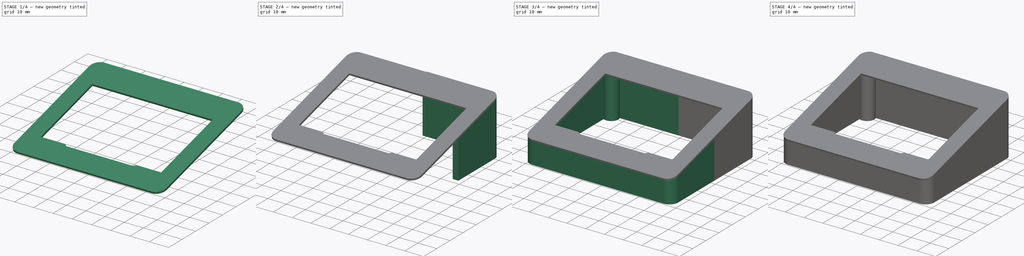
[diagram: build sequence overview — one tinted view per stage of 4, left to right]
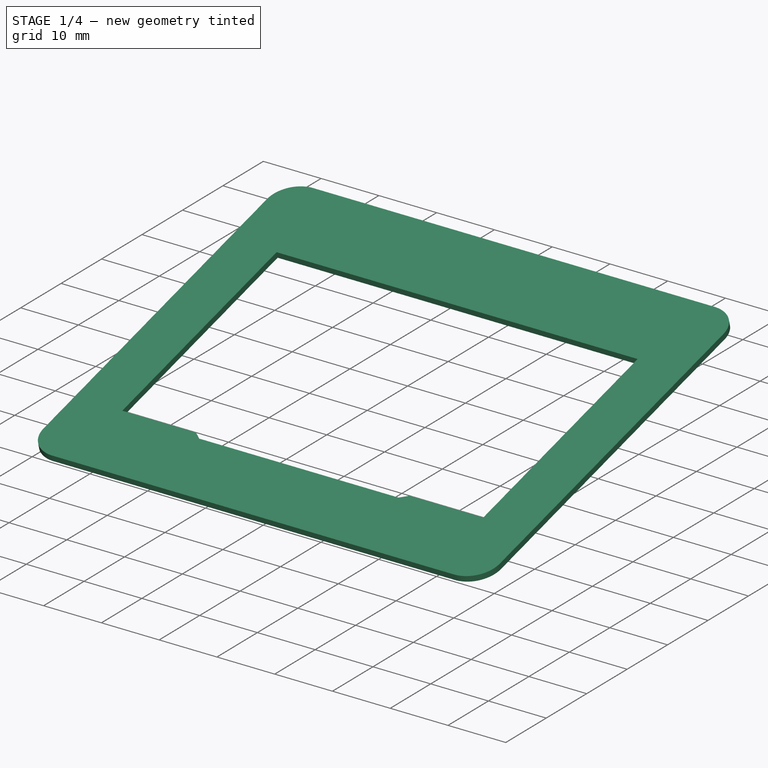
[diagram: stage 1 of 4 — iso view after this stage's code; geometry added in this stage tinted green]
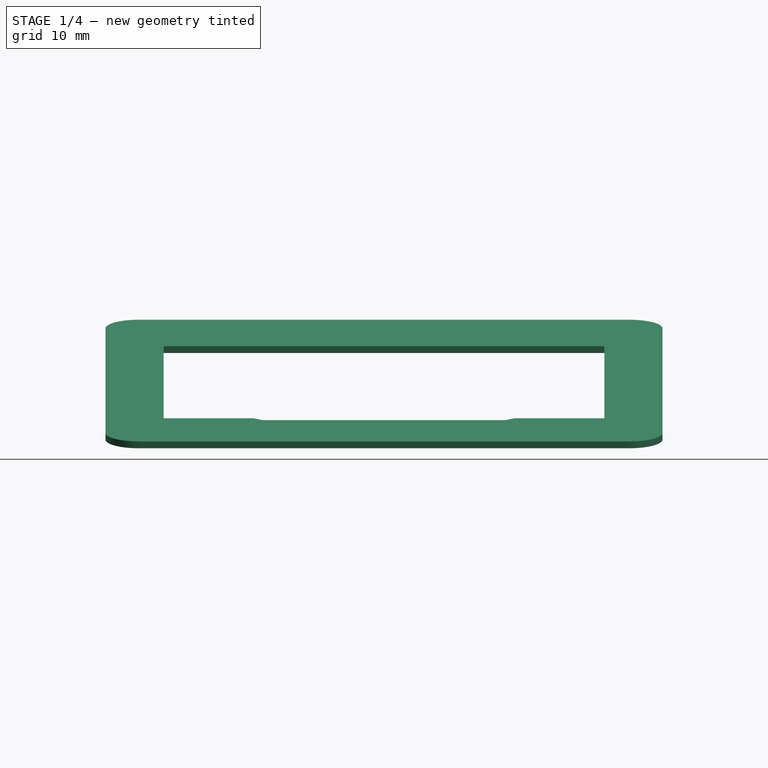
[diagram: stage 1 of 4 — front view after this stage's code; geometry added in this stage tinted green]
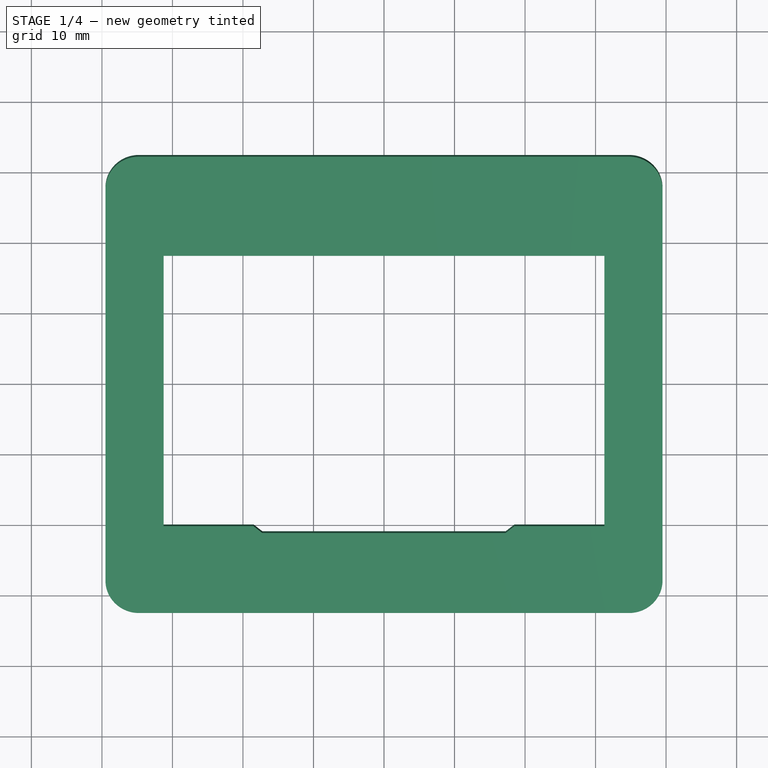
[diagram: stage 1 of 4 — top view after this stage's code; geometry added in this stage tinted green]
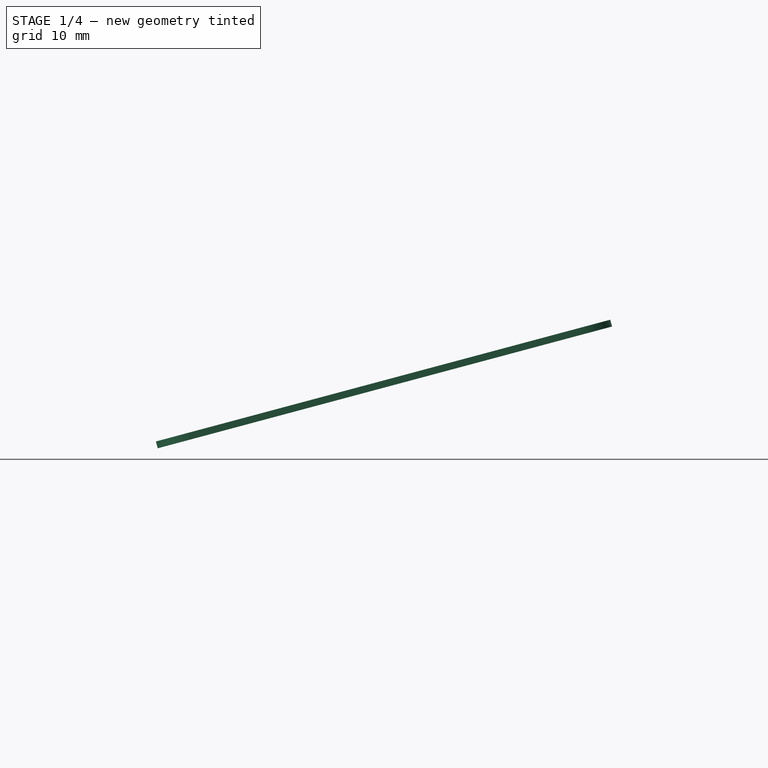
[diagram: stage 1 of 4 — right view after this stage's code; geometry added in this stage tinted green]
FCSTD DOCUMENT  (FreeCAD 0.20R29177 (Git))
Label: Display
License: All rights reserved
LicenseURL: http://en.wikipedia.org/wiki/All_rights_reserved
objects: Sketcher::SketchObject×8, PartDesign::Pad×4, PartDesign::Mirrored×4, PartDesign::Pocket×2, PartDesign::Body×2, PartDesign::Point×1, PartDesign::MultiTransform×1, Spreadsheet::Sheet×1
note: 28 computed .brp shape members not serialized (recipe doc carries the construction recipe); baked Part::Feature solids carry a one-line shape summary decoded from their .brp

FEATURE [Sketcher::SketchObject] Sketch
  FullyConstrained = true
  Placement = pos=(0,0,20) rot=(1,0,0;0.261799rad)
  sketch-geometry (19):
    g0: LineSegment StartX=0 StartY=18.85 StartZ=0 EndX=31.25 EndY=18.85 EndZ=0
    g1: LineSegment StartX=31.25 StartY=18.85 StartZ=0 EndX=31.25 EndY=-20.65 EndZ=0
    g2: LineSegment StartX=31.25 StartY=-20.65 StartZ=0 EndX=18.5 EndY=-20.65 EndZ=0
    g3: LineSegment StartX=18.5 StartY=-20.65 StartZ=0 EndX=17.25 EndY=-21.65 EndZ=0
    g4: LineSegment StartX=17.25 StartY=-21.65 StartZ=0 EndX=0 EndY=-21.65 EndZ=0
    g5: LineSegment StartX=0 StartY=-21.65 StartZ=0 EndX=0 EndY=-33.35 EndZ=0
    g6: LineSegment StartX=0 StartY=-33.35 StartZ=0 EndX=34.75 EndY=-33.35 EndZ=0
    g7: LineSegment StartX=39.5 StartY=-28.6 StartZ=0 EndX=39.5 EndY=28.6 EndZ=0
    g8: LineSegment StartX=34.75 StartY=33.35 StartZ=0 EndX=0 EndY=33.35 EndZ=0
    g9: LineSegment StartX=0 StartY=33.35 StartZ=0 EndX=0 EndY=18.85 EndZ=0
    g10: LineSegment StartX=0 StartY=21.85 StartZ=0 EndX=35.5 EndY=21.85 EndZ=0
    g11: LineSegment StartX=35.5 StartY=21.85 StartZ=0 EndX=35.5 EndY=-21.85 EndZ=0
    g12: LineSegment StartX=35.5 StartY=-21.85 StartZ=0 EndX=0 EndY=-21.85 EndZ=0
    g13: Circle CenterX=34.75 CenterY=28.6 CenterZ=0 NormalX=0 NormalY=0 NormalZ=1 AngleXU=0 Radius=1.75
    g14: Circle CenterX=34.75 CenterY=-28.6 CenterZ=0 NormalX=0 NormalY=0 NormalZ=1 AngleXU=0 Radius=1.75
    g15: ArcOfCircle CenterX=34.75 CenterY=28.6 CenterZ=0 NormalX=0 NormalY=0 NormalZ=1 AngleXU=0 Radius=4.75 StartAngle=0 EndAngle=1.5708
    g16: GeomPoint X=39.5 Y=33.35 Z=0
    g17: ArcOfCircle CenterX=34.75 CenterY=-28.6 CenterZ=0 NormalX=0 NormalY=0 NormalZ=1 AngleXU=0 Radius=4.75 StartAngle=4.71239 EndAngle=6.28319
    g18: GeomPoint X=39.5 Y=-33.35 Z=0
  constraints (52):
    c: PointOnObject(g0,g-2)
    c: Horizontal(g0)
    c: Coincident(g0,g1)
    c: Vertical(g1)
    c: Coincident(g1,g2)
    c: Horizontal(g2)
    c: Coincident(g2,g3)
    c: Coincident(g3,g4)
    c: PointOnObject(g4,g-2)
    c: Horizontal(g4)
    c: Coincident(g4,g5)
    c: PointOnObject(g5,g-2)
    c: Coincident(g5,g6)
    c: Horizontal(g6)
    c: Vertical(g7)
    c: PointOnObject(g8,g-2)
    c: Horizontal(g8)
    c: Coincident(g8,g9)
    c: Coincident(g9,g0)
    c: Distance(g-1,g1) = 31.25
    c: Distance(g1) = 39.5
    c: DistanceY(g4,g0) = 40.5
    c: Distance(g4) = 17.25
    c: Distance(g2,g-2) = 18.5
    c: Coincident(g10,g11)
    c: Coincident(g11,g12)
    c: Horizontal(g10)
    c: Horizontal(g12)
    c: Vertical(g11)
    c: PointOnObject(g10,g-2)
    c: Distance(g-1,g11) = 35.5
    c: Distance(g11) = 43.7
    c: DistanceY(g0,g10) = 3
    c: Diameter(g13) = 3.5
    c: Symmetric(g12,g10,g-1)
    c: Symmetric(g13,g14,g-1)
    c: Equal(g14,g13)
    c: Distance(g13,g10) = 6.75
    c: Distance(g10,g7) = 4
    c: PointOnObject(g16,g8)
    c: PointOnObject(g16,g7)
    c: Tangent(g8,g15) = -1.5708
    c: Tangent(g7,g15) = -1.5708
    c: PointOnObject(g18,g6)
    c: PointOnObject(g18,g7)
    c: Tangent(g6,g17) = -1.5708
    c: Tangent(g7,g17) = -1.5708
    c: Coincident(g15,g13)
    c: Coincident(g17,g14)
    c: DistanceX(g15) = 34.75  'Hole_X'
    c: DistanceY(g15) = 28.6  'Hole_Y'
    c: Diameter(g15) = 9.5
FEATURE [PartDesign::Pad] Pad
  Direction = (0,-0.258819,0.965926)
  Length = 1
  Length2 = 10
  Placement = pos=(0,0,20) rot=(1,0,0;0.261799rad)
  Profile = -> Sketch
  ReferenceAxis = -> Sketch [N_Axis]
  Type = 0
FEATURE [PartDesign::Mirrored] Mirrored
  BaseFeature = -> Pad
  MirrorPlane = -> Sketch [V_Axis]
  Originals = -> [Pad]
  Placement = pos=(0,0,20) rot=(1,0,0;0.261799rad)
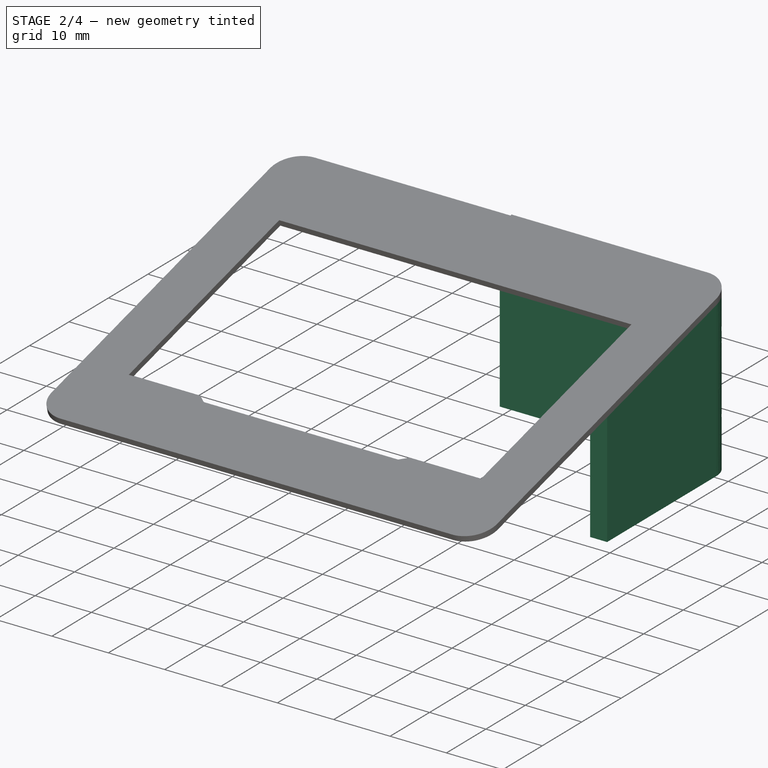
[diagram: stage 2 of 4 — iso view after this stage's code; geometry added in this stage tinted green]
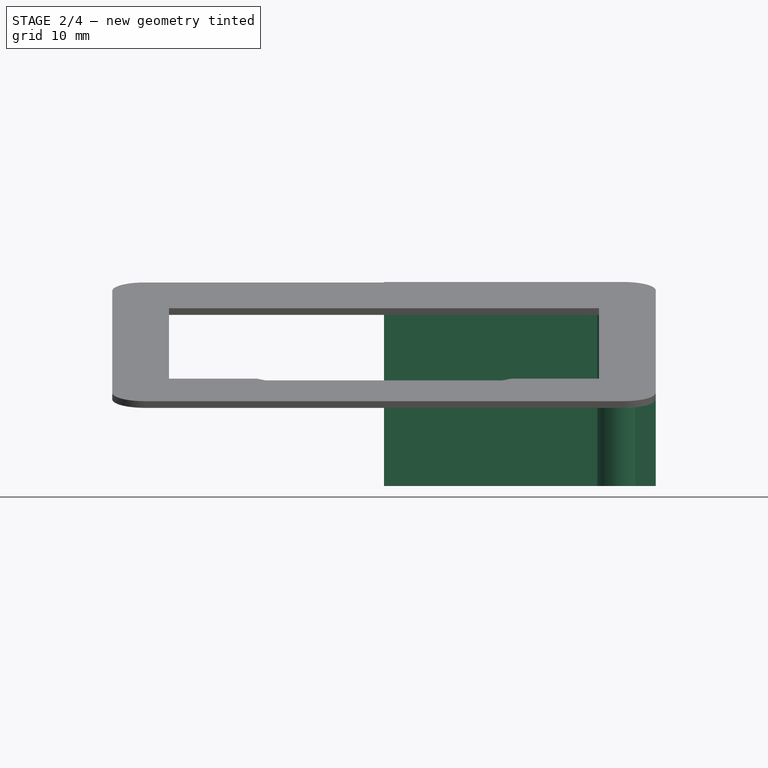
[diagram: stage 2 of 4 — front view after this stage's code; geometry added in this stage tinted green]
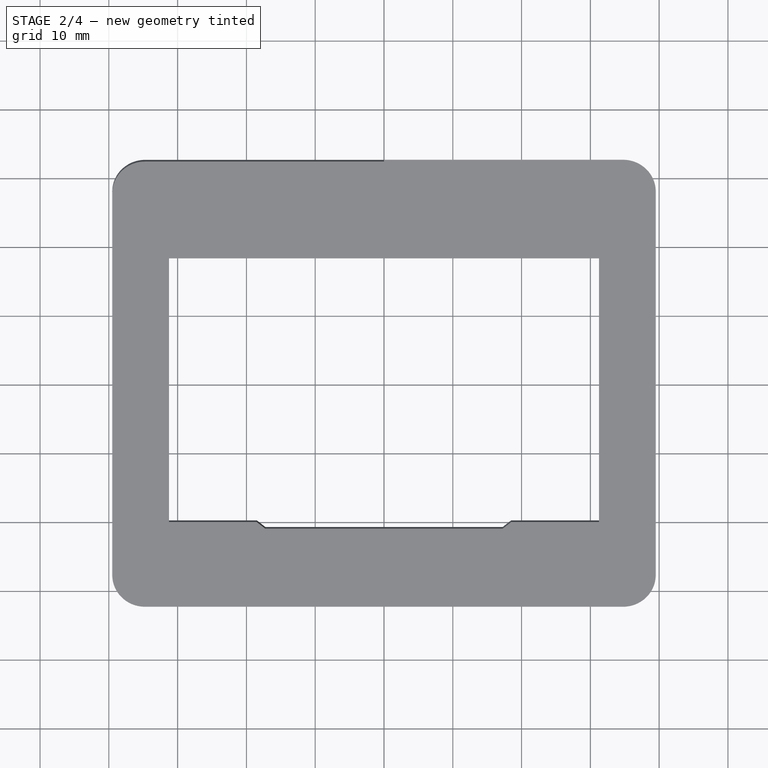
[diagram: stage 2 of 4 — top view after this stage's code; geometry added in this stage tinted green]
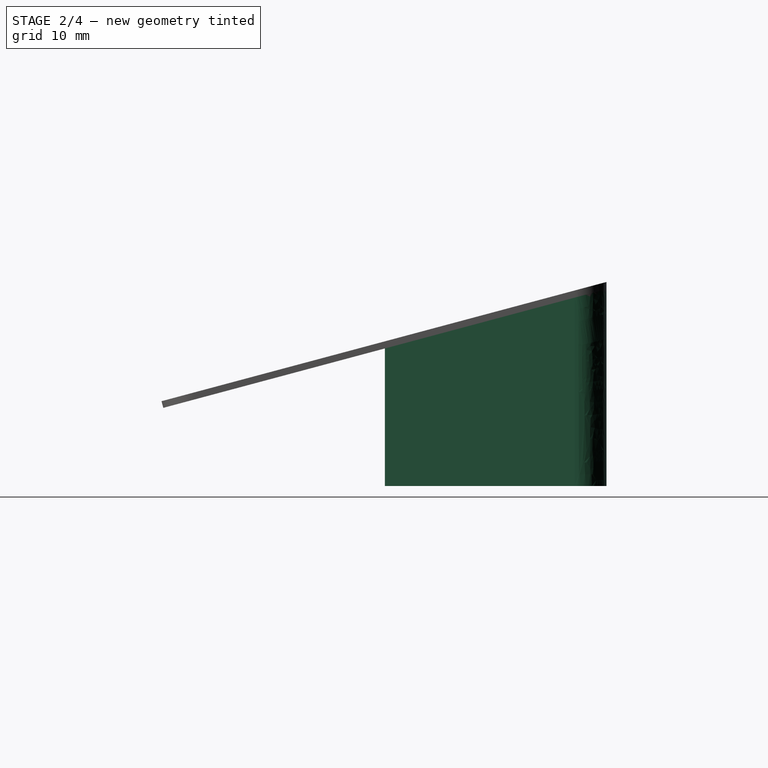
[diagram: stage 2 of 4 — right view after this stage's code; geometry added in this stage tinted green]
FEATURE [Sketcher::SketchObject] Sketch001
  FullyConstrained = true
  MapMode = 5
  Support = -> [XY_Plane]
  expr: Constraints[19] = Sketch.Constraints[19]
  expr: Constraints[20] = Sketch.Constraints[20]
  expr: Constraints[21] = Sketch.Constraints[21]
  expr: Constraints[22] = Sketch.Constraints[22]
  expr: Constraints[23] = Sketch.Constraints[23]
  expr: Constraints[30] = Sketch.Constraints[30]
  expr: Constraints[31] = Sketch.Constraints[31]
  expr: Constraints[32] = Sketch.Constraints[32]
  expr: Constraints[33] = Sketch.Constraints[33]
  expr: Constraints[37] = Sketch.Constraints[37]
  expr: Constraints[38] = Sketch.Constraints[38]
  expr: Constraints[51] = Sketch.Constraints[51]
  expr: Constraints[55] = Sketch.Constraints.Hole_X
  expr: Constraints[56] = Sketch.Constraints.Hole_Y * cos(Sketch.Placement.Rotation.Angle)
  sketch-geometry (21):
    g0: LineSegment StartX=0 StartY=18.85 StartZ=0 EndX=31.25 EndY=18.85 EndZ=0
    g1: LineSegment StartX=31.25 StartY=18.85 StartZ=0 EndX=31.25 EndY=-20.65 EndZ=0
    g2: LineSegment StartX=31.25 StartY=-20.65 StartZ=0 EndX=18.5 EndY=-20.65 EndZ=0
    g3: LineSegment StartX=18.5 StartY=-20.65 StartZ=0 EndX=17.25 EndY=-21.65 EndZ=0
    g4: LineSegment StartX=17.25 StartY=-21.65 StartZ=0 EndX=0 EndY=-21.65 EndZ=0
    g5: LineSegment StartX=0 StartY=-21.65 StartZ=0 EndX=0 EndY=-33.35 EndZ=0
    g6: LineSegment StartX=0 StartY=-33.35 StartZ=0 EndX=34.75 EndY=-33.35 EndZ=0
    g7: LineSegment StartX=39.5 StartY=-28.6 StartZ=0 EndX=39.5 EndY=28.6 EndZ=0
    g8: LineSegment StartX=34.75 StartY=33.35 StartZ=0 EndX=0 EndY=33.35 EndZ=0
    g9: LineSegment StartX=0 StartY=33.35 StartZ=0 EndX=0 EndY=18.85 EndZ=0
    g10: LineSegment StartX=0 StartY=21.85 StartZ=0 EndX=35.5 EndY=21.85 EndZ=0
    g11: LineSegment StartX=35.5 StartY=21.85 StartZ=0 EndX=35.5 EndY=-21.85 EndZ=0
    g12: LineSegment StartX=35.5 StartY=-21.85 StartZ=0 EndX=0 EndY=-21.85 EndZ=0
    g13: Circle CenterX=34.75 CenterY=28.6 CenterZ=0 NormalX=0 NormalY=0 NormalZ=1 AngleXU=0 Radius=1.75
    g14: Circle CenterX=34.75 CenterY=-28.6 CenterZ=0 NormalX=0 NormalY=0 NormalZ=1 AngleXU=0 Radius=1.75
    g15: ArcOfCircle CenterX=34.75 CenterY=28.6 CenterZ=0 NormalX=0 NormalY=0 NormalZ=1 AngleXU=0 Radius=4.75 StartAngle=0 EndAngle=1.5708
    g16: GeomPoint X=39.5 Y=33.35 Z=0
    g17: ArcOfCircle CenterX=34.75 CenterY=-28.6 CenterZ=0 NormalX=0 NormalY=0 NormalZ=1 AngleXU=0 Radius=4.75 StartAngle=4.71239 EndAngle=6.28319
    g18: GeomPoint X=39.5 Y=-33.35 Z=0
    g19: Circle CenterX=34.75 CenterY=27.6255 CenterZ=0 NormalX=0 NormalY=0 NormalZ=1 AngleXU=0 Radius=1.75
    g20: Circle CenterX=34.75 CenterY=27.6255 CenterZ=0 NormalX=0 NormalY=0 NormalZ=1 AngleXU=0 Radius=3.75
  constraints (57):
    c: PointOnObject(g0,g-2)
    c: Horizontal(g0)
    c: Coincident(g0,g1)
    c: Vertical(g1)
    c: Coincident(g1,g2)
    c: Horizontal(g2)
    c: Coincident(g2,g3)
    c: Coincident(g3,g4)
    c: PointOnObject(g4,g-2)
    c: Horizontal(g4)
    c: Coincident(g4,g5)
    c: PointOnObject(g5,g-2)
    c: Coincident(g5,g6)
    c: Horizontal(g6)
    c: Vertical(g7)
    c: PointOnObject(g8,g-2)
    c: Horizontal(g8)
    c: Coincident(g8,g9)
    c: Coincident(g9,g0)
    c: Distance(g-1,g1) = 31.25
    c: Distance(g1) = 39.5
    c: DistanceY(g4,g0) = 40.5
    c: Distance(g4) = 17.25
    c: Distance(g2,g-2) = 18.5
    c: Coincident(g10,g11)
    c: Coincident(g11,g12)
    c: Horizontal(g10)
    c: Horizontal(g12)
    c: Vertical(g11)
    c: PointOnObject(g10,g-2)
    c: Distance(g-1,g11) = 35.5
    c: Distance(g11) = 43.7
    c: DistanceY(g0,g10) = 3
    c: Diameter(g13) = 3.5
    c: Symmetric(g12,g10,g-1)
    c: Symmetric(g13,g14,g-1)
    c: Equal(g14,g13)
    c: Distance(g13,g10) = 6.75
    c: Distance(g10,g7) = 4
    c: PointOnObject(g16,g8)
    c: PointOnObject(g16,g7)
    c: Tangent(g8,g15) = -1.5708
    c: Tangent(g7,g15) = -1.5708
    c: PointOnObject(g18,g6)
    c: PointOnObject(g18,g7)
    c: Tangent(g6,g17) = -1.5708
    c: Tangent(g7,g17) = -1.5708
    c: Coincident(g15,g13)
    c: Coincident(g17,g14)
    c: DistanceX(g15) = 34.75  'Hole_X'
    c: DistanceY(g15) = 28.6  'Hole_Y'
    c: Diameter(g15) = 9.5
    c: Coincident(g20,g19)
    c: Diameter(g19) = 3.5
    c: Diameter(g20) = 7.5
    c: DistanceX(g19) = 34.75
    c: DistanceY(g19) = 27.6255
FEATURE [PartDesign::Pad] Pad001
  BaseFeature = -> Mirrored
  Direction = (0,0,1)
  Length = 10
  Length2 = 10
  Placement = pos=(0,0,20) rot=(1,0,0;0.261799rad)
  Profile = -> Sketch001
  ReferenceAxis = -> Sketch001 [N_Axis]
  Type = 2
FEATURE [Sketcher::SketchObject] Sketch002
  ExternalGeometry = -> [Pad001]
  FullyConstrained = true
  MapMode = 5
  Support = -> [XY_Plane]
  sketch-geometry (12):
    g0: LineSegment StartX=34.75 StartY=32.2136 StartZ=0 EndX=0 EndY=32.2136 EndZ=0
    g1: LineSegment StartX=39.5 StartY=27.6255 StartZ=0 EndX=39.5 EndY=0 EndZ=0
    g2: ArcOfEllipse CenterX=34.75 CenterY=27.6255 CenterZ=0 NormalX=0 NormalY=0 NormalZ=1 MajorRadius=4.75 MinorRadius=4.58815 AngleXU=0 StartAngle=2e-16 EndAngle=1.5708
    g3: LineSegment StartX=39.5 StartY=27.6255 StartZ=0 EndX=30 EndY=27.6255 EndZ=0
    g4: LineSegment StartX=34.75 StartY=32.2136 StartZ=0 EndX=34.75 EndY=23.0373 EndZ=0
    g5: GeomPoint X=35.9794 Y=27.6255 Z=0
    g6: GeomPoint X=33.5206 Y=27.6255 Z=0
    g7: LineSegment StartX=0 StartY=32.2136 StartZ=0 EndX=0 EndY=29.2136 EndZ=0
    g8: ArcOfCircle CenterX=34.75 CenterY=27.4636 CenterZ=0 NormalX=0 NormalY=0 NormalZ=1 AngleXU=0 Radius=1.75 StartAngle=1.16e-13 EndAngle=1.5708
    g9: LineSegment StartX=36.5 StartY=27.4636 StartZ=0 EndX=36.5 EndY=0 EndZ=0
    g10: LineSegment StartX=36.5 StartY=0 StartZ=0 EndX=39.5 EndY=0 EndZ=0
    g11: LineSegment StartX=0 StartY=29.2136 StartZ=0 EndX=34.75 EndY=29.2136 EndZ=0
  constraints (24):
    c: PointOnObject(g0,g-2)
    c: PointOnObject(g1,g-1)
    c: Vertical(g1)
    c: Tangent(g1,g-3) = 1.5708
    c: Tangent(g0,g-3) = -1.5708
    c: Horizontal(g0)
    c: InternalAlignment(g3-g6 -> g2) x4
    c: Coincident(g2,g1)
    c: Coincident(g2,g0)
    c: Coincident(g-3,g2)
    c: Horizontal(g3)
    c: Coincident(g7,g0)
    c: Vertical(g7)
    c: PointOnObject(g9,g-1)
    c: Vertical(g9)
    c: Coincident(g10,g9)
    c: Coincident(g10,g1)
    c: Coincident(g11,g7)
    c: Horizontal(g11)
    c: Tangent(g9,g8) = 1.5708
    c: Distance(g7) = 3
    c: Distance(g10) = 3
    c: Tangent(g8,g11) = 1.5708
    c: Diameter(g8) = 3.5
FEATURE [PartDesign::Pad] Pad002
  BaseFeature = -> Pad001
  Direction = (0,0,1)
  Length = 10
  Length2 = 10
  Placement = pos=(0,0,20) rot=(1,0,0;0.261799rad)
  Profile = -> Sketch002
  ReferenceAxis = -> Sketch002 [N_Axis]
  Type = 1
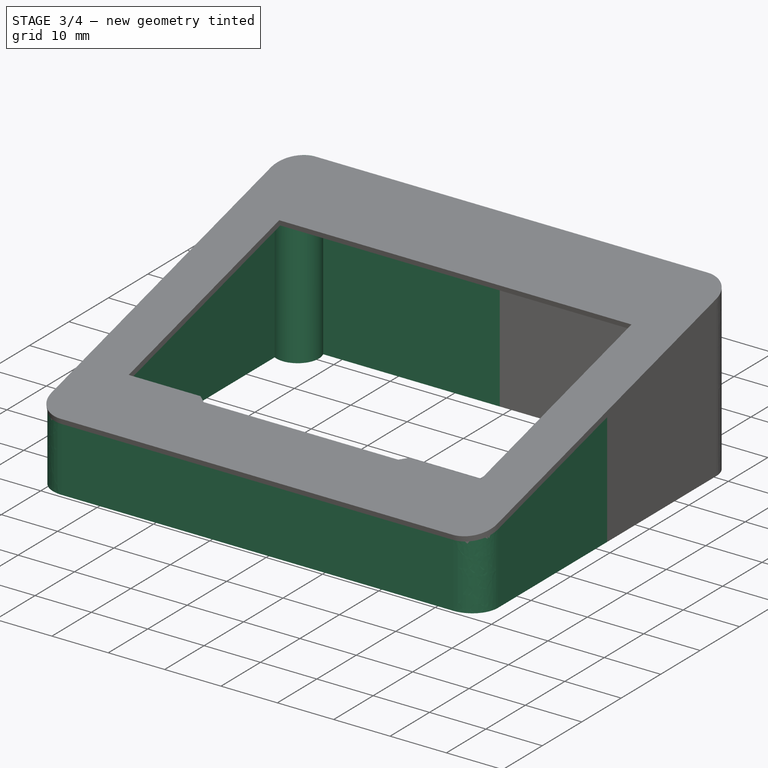
[diagram: stage 3 of 4 — iso view after this stage's code; geometry added in this stage tinted green]
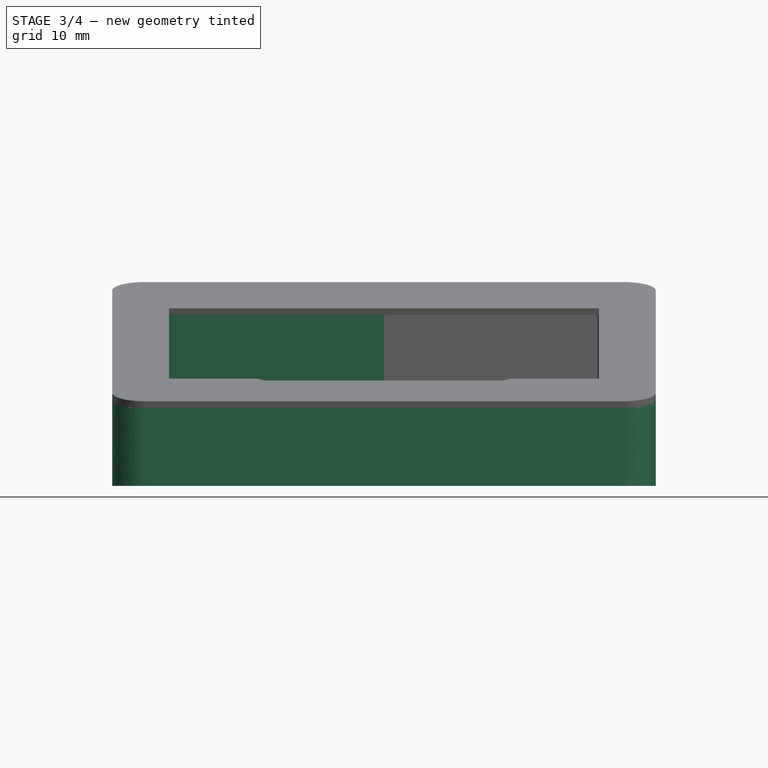
[diagram: stage 3 of 4 — front view after this stage's code; geometry added in this stage tinted green]
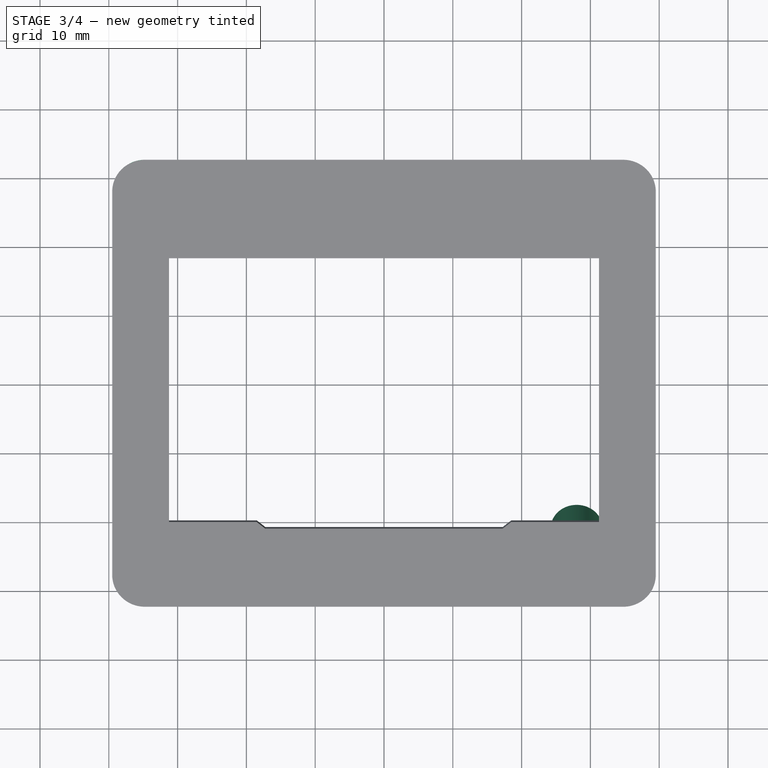
[diagram: stage 3 of 4 — top view after this stage's code; geometry added in this stage tinted green]
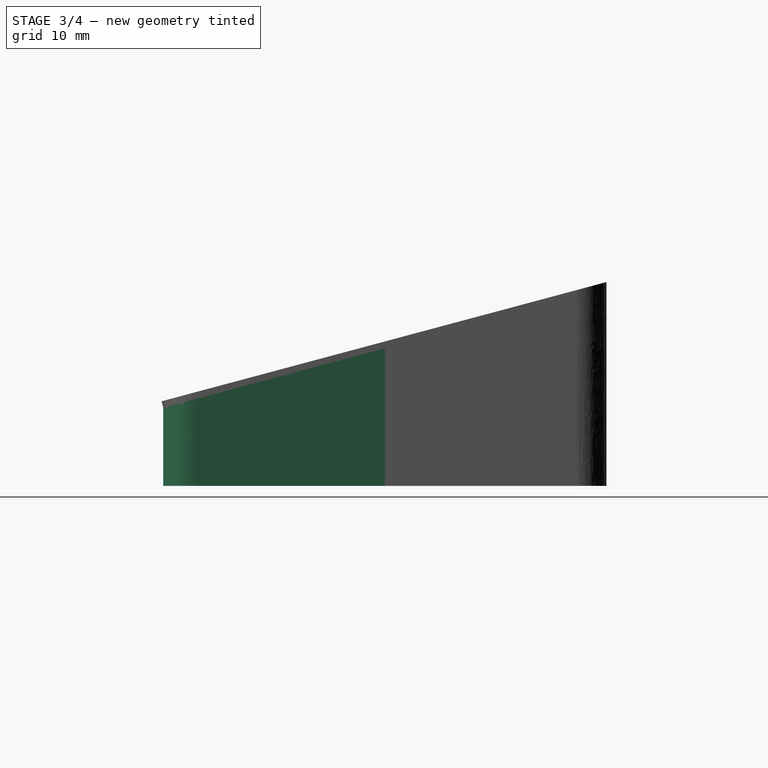
[diagram: stage 3 of 4 — right view after this stage's code; geometry added in this stage tinted green]
FEATURE [Sketcher::SketchObject] Sketch003
  AttachmentOffset = pos=(34.75,27.6255,2) rot=(0,0,1;0rad)
  FullyConstrained = false
  MapMode = 5
  Placement = pos=(34.75,27.6255,2) rot=(0,0,1;0rad)
  Support = -> [XY_Plane]
  expr: .AttachmentOffset.Base = DatumPoint.Placement.Base
  sketch-geometry (10):
    g0: LineSegment StartX=0 StartY=3.17543 StartZ=0 EndX=-2.75 EndY=1.58771 EndZ=0
    g1: LineSegment StartX=-2.75 StartY=1.58771 StartZ=0 EndX=-2.75 EndY=-1.58771 EndZ=0
    g2: LineSegment StartX=-2.75 StartY=-1.58771 StartZ=0 EndX=-3.15e-14 EndY=-3.17543 EndZ=0
    g3: LineSegment StartX=-3.15e-14 StartY=-3.17543 StartZ=0 EndX=2.75 EndY=-1.58771 EndZ=0
    g4: LineSegment StartX=2.75 StartY=-1.58771 StartZ=0 EndX=2.75 EndY=1.58771 EndZ=0
    g5: LineSegment StartX=2.75 StartY=1.58771 StartZ=0 EndX=0 EndY=3.17543 EndZ=0
    g6: Circle CenterX=0 CenterY=0 CenterZ=0 NormalX=0 NormalY=0 NormalZ=1 AngleXU=0 Radius=3.17543
    g7: LineSegment StartX=2.75 StartY=-1.58771 StartZ=0 EndX=2.75 EndY=-9.06599 EndZ=0
    g8: LineSegment StartX=2.75 StartY=-9.06599 StartZ=0 EndX=-2.75 EndY=-9.06599 EndZ=0
    g9: LineSegment StartX=-2.75 StartY=-9.06599 StartZ=0 EndX=-2.75 EndY=-1.58771 EndZ=0
  constraints (23):
    c: Coincident(g0,g1)
    c: Coincident(g1,g2)
    c: Coincident(g2,g3)
    c: Coincident(g3,g4)
    c: Coincident(g4,g5)
    c: Coincident(g5,g0)
    c: Equal(g0, g1-g5) x5
    c: PointOnObject(g0,g6)
    c: PointOnObject(g1,g6)
    c: PointOnObject(g2,g6)
    c: PointOnObject(g3,g6)
    c: PointOnObject(g4,g6)
    c: PointOnObject(g5,g6)
    c: Coincident(g6,g-1)
    c: PointOnObject(g5,g-2)
    c: Coincident(g7,g8)
    c: Coincident(g8,g9)
    c: Horizontal(g8)
    c: Vertical(g7)
    c: Vertical(g9)
    c: Coincident(g9,g1)
    c: Coincident(g7,g4)
    c: Distance(g8) = 5.5
FEATURE [PartDesign::Point] DatumPoint
  AttacherType = Attacher::AttachEnginePoint
  AttachmentOffset = pos=(0,2,0) rot=(0,0,1;0rad)
  MapMode = 36
  Placement = pos=(34.75,27.6255,2) rot=(1,0,0;1.5708rad)
  Support = -> [Sketch001]
FEATURE [PartDesign::Mirrored] Mirrored001
  MirrorPlane = -> Sketch001 [V_Axis]
  Placement = pos=(0,0,20) rot=(1,0,0;0.261799rad)
FEATURE [PartDesign::Mirrored] Mirrored002
  MirrorPlane = -> Sketch001 [H_Axis]
  Placement = pos=(0,0,20) rot=(1,0,0;0.261799rad)
FEATURE [PartDesign::MultiTransform] MultiTransform
  BaseFeature = -> Pad002
  Originals = -> [Pad001,Pad002]
  Placement = pos=(0,0,20) rot=(1,0,0;0.261799rad)
  Transformations = -> [Mirrored001,Mirrored002]
FEATURE [Sketcher::SketchObject] Sketch004
  FullyConstrained = false
  MapMode = 5
  Placement = pos=(0,0,0) rot=(0.57735,0.57735,0.57735;2.0944rad)
  Support = -> [YZ_Plane]
  sketch-geometry (4):
    g0: LineSegment StartX=1212.49 StartY=345.887 StartZ=0 EndX=-78.3731 EndY=-5.68e-14 EndZ=0
    g1: LineSegment StartX=-78.3731 StartY=-5.68e-14 StartZ=0 EndX=-78.3731 EndY=345.887 EndZ=0
    g2: LineSegment StartX=-78.3731 StartY=345.887 StartZ=0 EndX=1212.49 EndY=345.887 EndZ=0
    g3: GeomPoint X=0 Y=21 Z=0
  constraints (10):
    c: Coincident(g1,g0)
    c: Vertical(g1)
    c: Coincident(g2,g1)
    c: Horizontal(g2)
    c: Angle(g-1,g0) = 0.261799
    c: PointOnObject(g3,g0)
    c: PointOnObject(g3,g-2)
    c: DistanceY(g3) = 21
    c: PointOnObject(g0,g-1)
    c: Coincident(g0,g2)
FEATURE [PartDesign::Pocket] Pocket001
  BaseFeature = -> MultiTransform
  Direction = (-1,2e-16,-3e-16)
  Length = 5
  Length2 = 5
  Midplane = true
  Placement = pos=(0,0,20) rot=(1,0,0;0.261799rad)
  Profile = -> Sketch004
  ReferenceAxis = -> Sketch004 [N_Axis]
  Type = 1
FEATURE [Sketcher::SketchObject] Sketch005
  AttachmentOffset = pos=(0,-1,13) rot=(1,0,0;0.488692rad)
  FullyConstrained = true
  MapMode = 5
  Placement = pos=(0,-1,13) rot=(1,0,0;0.488692rad)
  Support = -> [XY_Plane]
  expr: Constraints[19] = Sketch.Constraints[19]
  expr: Constraints[20] = Sketch.Constraints[20]
  expr: Constraints[21] = Sketch.Constraints[21]
  expr: Constraints[22] = Sketch.Constraints[22]
  expr: Constraints[23] = Sketch.Constraints[23]
  expr: Constraints[30] = Sketch.Constraints[30]
  expr: Constraints[31] = Sketch.Constraints[31]
  expr: Constraints[32] = Sketch.Constraints[32]
  expr: Constraints[33] = Sketch.Constraints[33]
  expr: Constraints[37] = Sketch.Constraints[37]
  expr: Constraints[38] = Sketch.Constraints[38]
  expr: Constraints[51] = Sketch.Constraints[51]
  sketch-geometry (21):
    g0: LineSegment StartX=0 StartY=18.85 StartZ=0 EndX=31.25 EndY=18.85 EndZ=0
    g1: LineSegment StartX=31.25 StartY=18.85 StartZ=0 EndX=31.25 EndY=-20.65 EndZ=0
    g2: LineSegment StartX=31.25 StartY=-20.65 StartZ=0 EndX=18.5 EndY=-20.65 EndZ=0
    g3: LineSegment StartX=18.5 StartY=-20.65 StartZ=0 EndX=17.25 EndY=-21.65 EndZ=0
    g4: LineSegment StartX=17.25 StartY=-21.65 StartZ=0 EndX=0 EndY=-21.65 EndZ=0
    g5: LineSegment StartX=0 StartY=-21.65 StartZ=0 EndX=0 EndY=-33.35 EndZ=0
    g6: LineSegment StartX=0 StartY=-33.35 StartZ=0 EndX=34.75 EndY=-33.35 EndZ=0
    g7: LineSegment StartX=39.5 StartY=-28.6 StartZ=0 EndX=39.5 EndY=28.6 EndZ=0
    g8: LineSegment StartX=34.75 StartY=33.35 StartZ=0 EndX=0 EndY=33.35 EndZ=0
    g9: LineSegment StartX=0 StartY=33.35 StartZ=0 EndX=0 EndY=18.85 EndZ=0
    g10: LineSegment StartX=0 StartY=21.85 StartZ=0 EndX=35.5 EndY=21.85 EndZ=0
    g11: LineSegment StartX=35.5 StartY=21.85 StartZ=0 EndX=35.5 EndY=-21.85 EndZ=0
    g12: LineSegment StartX=35.5 StartY=-21.85 StartZ=0 EndX=0 EndY=-21.85 EndZ=0
    g13: Circle CenterX=34.75 CenterY=28.6 CenterZ=0 NormalX=0 NormalY=0 NormalZ=1 AngleXU=0 Radius=1.75
    g14: Circle CenterX=34.75 CenterY=-28.6 CenterZ=0 NormalX=0 NormalY=0 NormalZ=1 AngleXU=0 Radius=1.75
    g15: ArcOfCircle CenterX=34.75 CenterY=28.6 CenterZ=0 NormalX=0 NormalY=0 NormalZ=1 AngleXU=0 Radius=4.75 StartAngle=0 EndAngle=1.5708
    g16: GeomPoint X=39.5 Y=33.35 Z=0
    g17: ArcOfCircle CenterX=34.75 CenterY=-28.6 CenterZ=0 NormalX=0 NormalY=0 NormalZ=1 AngleXU=0 Radius=4.75 StartAngle=4.71239 EndAngle=6.28319
    g18: GeomPoint X=39.5 Y=-33.35 Z=0
    g19: Circle CenterX=28 CenterY=-22.45 CenterZ=0 NormalX=0 NormalY=0 NormalZ=1 AngleXU=0 Radius=1.75
    g20: Circle CenterX=28 CenterY=-22.45 CenterZ=0 NormalX=0 NormalY=0 NormalZ=1 AngleXU=0 Radius=3.75
  constraints (57):
    c: PointOnObject(g0,g-2)
    c: Horizontal(g0)
    c: Coincident(g0,g1)
    c: Vertical(g1)
    c: Coincident(g1,g2)
    c: Horizontal(g2)
    c: Coincident(g2,g3)
    c: Coincident(g3,g4)
    c: PointOnObject(g4,g-2)
    c: Horizontal(g4)
    c: Coincident(g4,g5)
    c: PointOnObject(g5,g-2)
    c: Coincident(g5,g6)
    c: Horizontal(g6)
    c: Vertical(g7)
    c: PointOnObject(g8,g-2)
    c: Horizontal(g8)
    c: Coincident(g8,g9)
    c: Coincident(g9,g0)
    c: Distance(g-1,g1) = 31.25
    c: Distance(g1) = 39.5
    c: DistanceY(g4,g0) = 40.5
    c: Distance(g4) = 17.25
    c: Distance(g2,g-2) = 18.5
    c: Coincident(g10,g11)
    c: Coincident(g11,g12)
    c: Horizontal(g10)
    c: Horizontal(g12)
    c: Vertical(g11)
    c: PointOnObject(g10,g-2)
    c: Distance(g-1,g11) = 35.5
    c: Distance(g11) = 43.7
    c: DistanceY(g0,g10) = 3
    c: Diameter(g13) = 3.5
    c: Symmetric(g12,g10,g-1)
    c: Symmetric(g13,g14,g-1)
    c: Equal(g14,g13)
    c: Distance(g13,g10) = 6.75
    c: Distance(g10,g7) = 4
    c: PointOnObject(g16,g8)
    c: PointOnObject(g16,g7)
    c: Tangent(g8,g15) = -1.5708
    c: Tangent(g7,g15) = -1.5708
    c: PointOnObject(g18,g6)
    c: PointOnObject(g18,g7)
    c: Tangent(g6,g17) = -1.5708
    c: Tangent(g7,g17) = -1.5708
    c: Coincident(g15,g13)
    c: Coincident(g17,g14)
    c: DistanceX(g15) = 34.75  'Hole_X'
    c: DistanceY(g15) = 28.6  'Hole_Y'
    c: Diameter(g15) = 9.5
    c: Coincident(g20,g19)
    c: Diameter(g20) = 7.5
    c: Diameter(g19) = 3.5
    c: DistanceY(g19) = -22.45
    c: DistanceX(g19) = 28
FEATURE [PartDesign::Pad] Pad003
  BaseFeature = -> Pocket001
  Direction = (0,-0.469472,0.882948)
  Length = 10
  Length2 = 10
  Placement = pos=(0,0,20) rot=(1,0,0;0.261799rad)
  Profile = -> Sketch005
  ReferenceAxis = -> Sketch005 [N_Axis]
  Type = 2
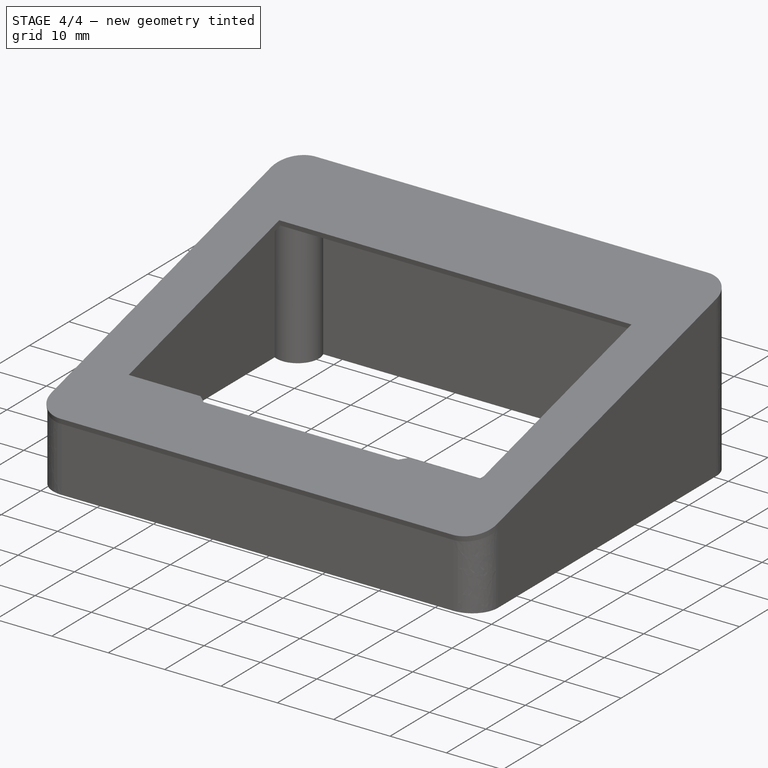
[diagram: stage 4 of 4 — iso view after this stage's code; geometry added in this stage tinted green]
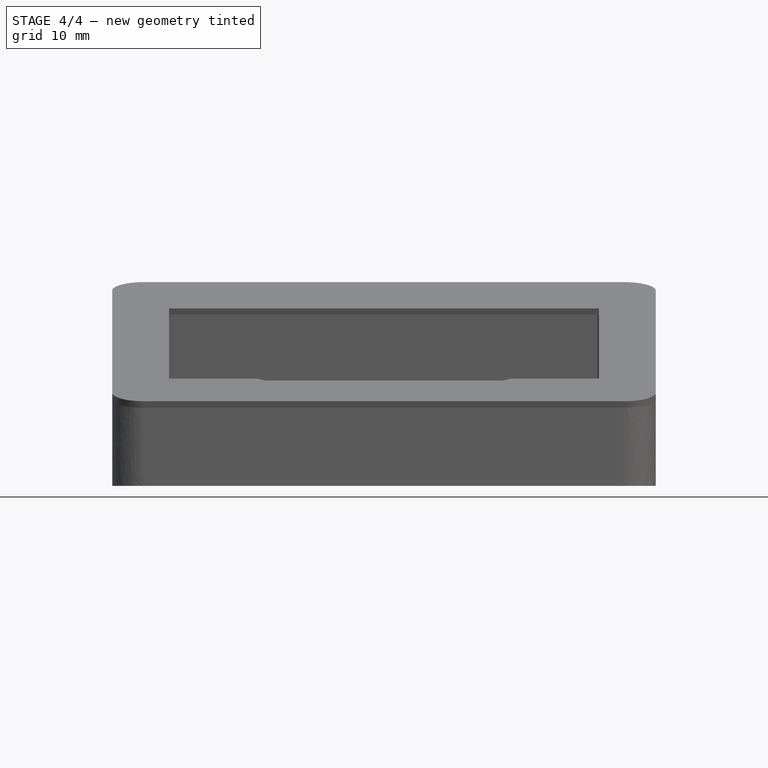
[diagram: stage 4 of 4 — front view after this stage's code; geometry added in this stage tinted green]
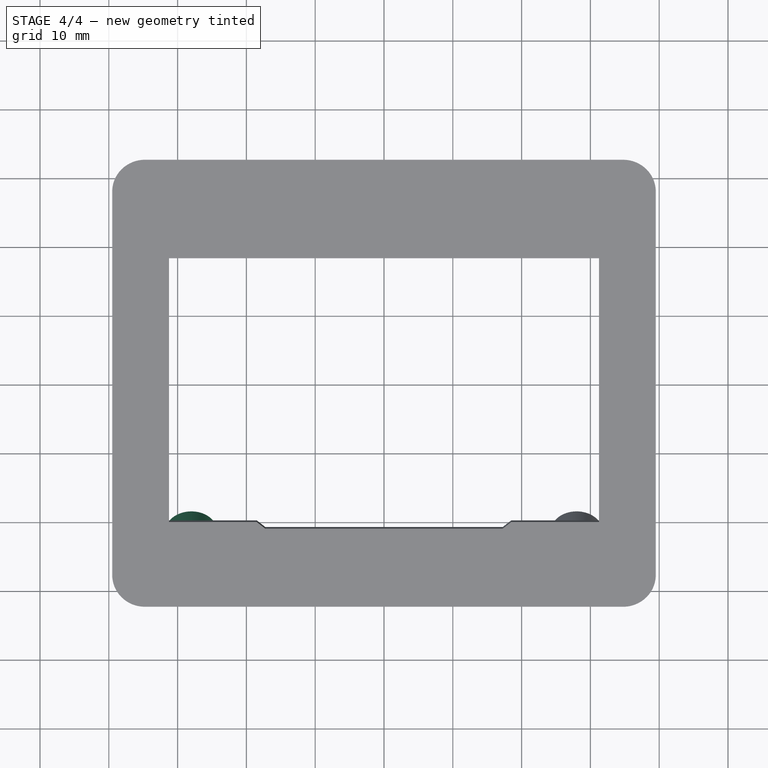
[diagram: stage 4 of 4 — top view after this stage's code; geometry added in this stage tinted green]
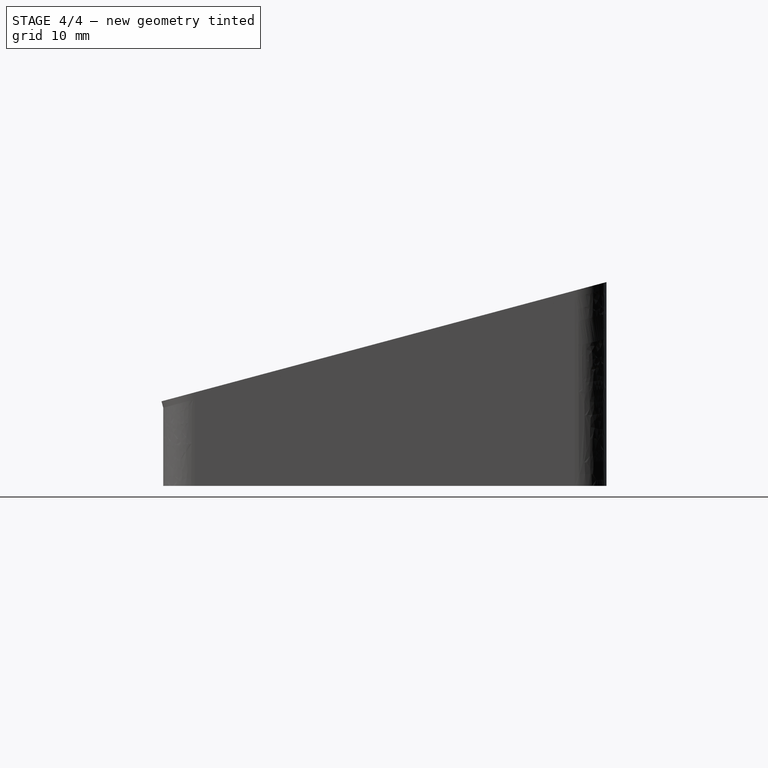
[diagram: stage 4 of 4 — right view after this stage's code; geometry added in this stage tinted green]
FEATURE [Sketcher::SketchObject] Sketch006
  FullyConstrained = false
  MapMode = 5
  Placement = pos=(0,0,0) rot=(0.57735,0.57735,0.57735;2.0944rad)
  Support = -> [YZ_Plane]
  sketch-geometry (3):
    g0: LineSegment StartX=-24.115 StartY=0.707917 StartZ=0 EndX=-16.3256 EndY=8.12729 EndZ=0
    g1: LineSegment StartX=-16.3256 StartY=8.12729 StartZ=0 EndX=-16.3256 EndY=1.30711 EndZ=0
    g2: LineSegment StartX=-16.3256 StartY=1.30711 StartZ=0 EndX=-24.115 EndY=0.707917 EndZ=0
  constraints (4):
    c: Coincident(g1,g0)
    c: Vertical(g1)
    c: Coincident(g2,g1)
    c: Coincident(g2,g0)
FEATURE [PartDesign::Pocket] Pocket
  BaseFeature = -> Pad003
  Direction = (-1,2e-16,-3e-16)
  Length = 5
  Length2 = 5
  Placement = pos=(0,0,20) rot=(1,0,0;0.261799rad)
  Profile = -> Sketch006
  ReferenceAxis = -> Sketch006 [N_Axis]
  Reversed = true
  Type = 2
FEATURE [PartDesign::Mirrored] Mirrored003
  BaseFeature = -> Pocket
  MirrorPlane = -> Sketch005 [V_Axis]
  Originals = -> [Pad003,Pocket]
  Placement = pos=(0,0,20) rot=(1,0,0;0.261799rad)
FEATURE [PartDesign::Body] Body
  Group = -> [Sketch,Pad,Mirrored,Sketch001,Pad001,Sketch002,Pad002,Sketch003,DatumPoint,MultiTransform,Mirrored001,Mirrored002,Sketch004,Pocket001,Sketch005,Pad003,Sketch006,Pocket,Mirrored003]
  Origin = -> Origin
  Tip = -> Mirrored003
FEATURE [Spreadsheet::Sheet] Spreadsheet
  cells = B2(angle)=15; B3(med_height)==21mm; B4(length)=; B5(width)=
FEATURE [Sketcher::SketchObject] Sketch007
  AttachmentOffset = pos=(0,0,21) rot=(1,0,0;0.261799rad)
  FullyConstrained = false
  MapMode = 5
  Placement = pos=(0,0,21) rot=(1,0,0;0.261799rad)
  Support = -> [XY_Plane001]
  expr: .AttachmentOffset.Base.z = Spreadsheet.med_height
  expr: .AttachmentOffset.Rotation.Angle = Spreadsheet.angle
  sketch-geometry (4):
    g0: LineSegment StartX=0 StartY=33.1212 StartZ=0 EndX=38.5084 EndY=33.1212 EndZ=0
    g1: LineSegment StartX=38.5084 StartY=33.1212 StartZ=0 EndX=38.5084 EndY=-33.2323 EndZ=0
    g2: LineSegment StartX=38.5084 StartY=-33.2323 StartZ=0 EndX=0 EndY=-33.2323 EndZ=0
    g3: LineSegment StartX=0 StartY=-33.2323 StartZ=0 EndX=0 EndY=33.1212 EndZ=0
  constraints (9):
    c: Coincident(g0,g1)
    c: Coincident(g1,g2)
    c: Coincident(g2,g3)
    c: Coincident(g3,g0)
    c: Horizontal(g0)
    c: Horizontal(g2)
    c: Vertical(g1)
    c: Vertical(g3)
    c: PointOnObject(g0,g-2)
FEATURE [PartDesign::Body] Body001
  Group = -> [Sketch007]
  Origin = -> Origin001
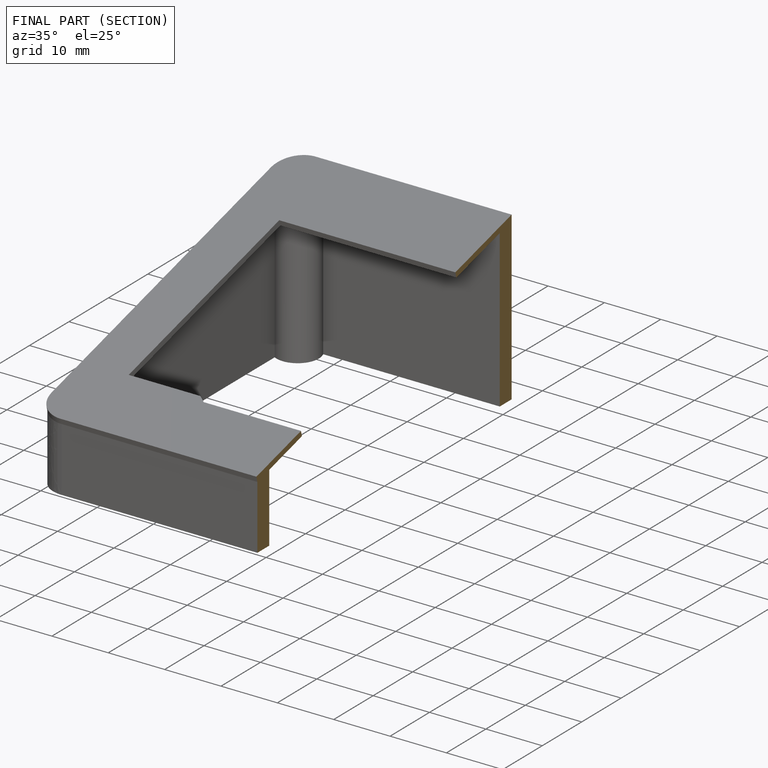
[diagram: finished part — half-section view (interior)]
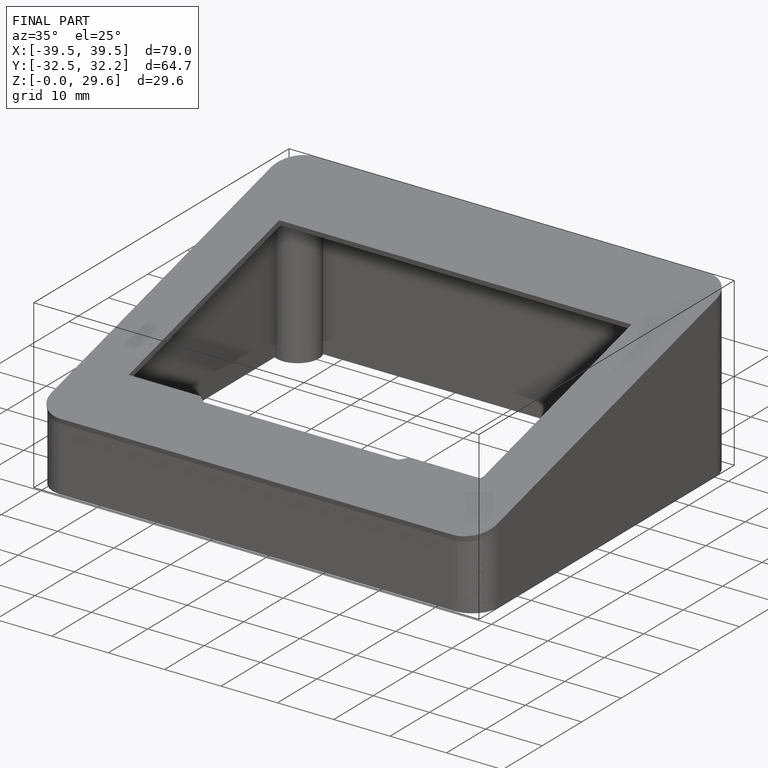
[diagram: finished part — iso view with bounding-box wireframe]
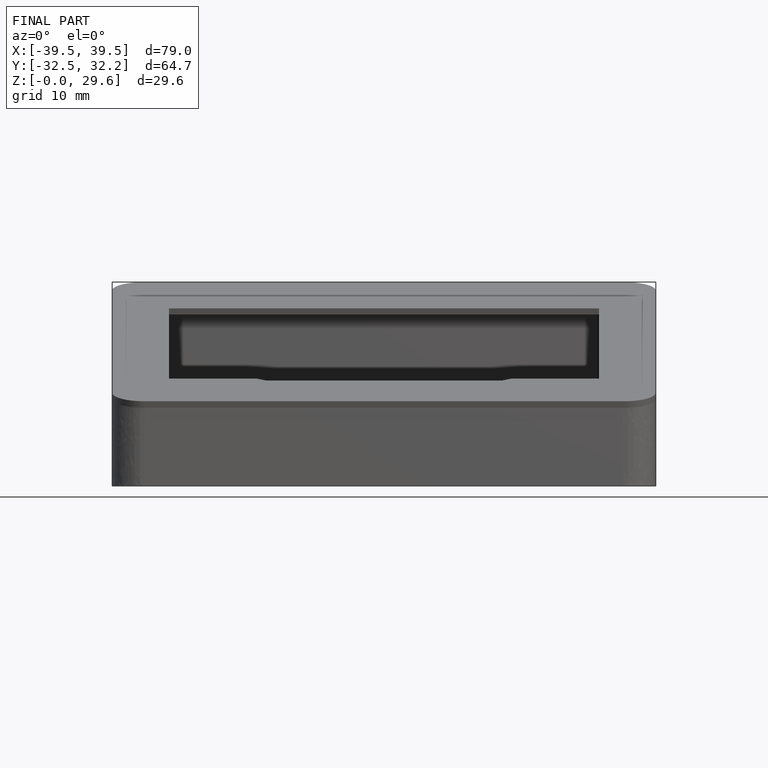
[diagram: finished part — front view with bounding-box wireframe]
